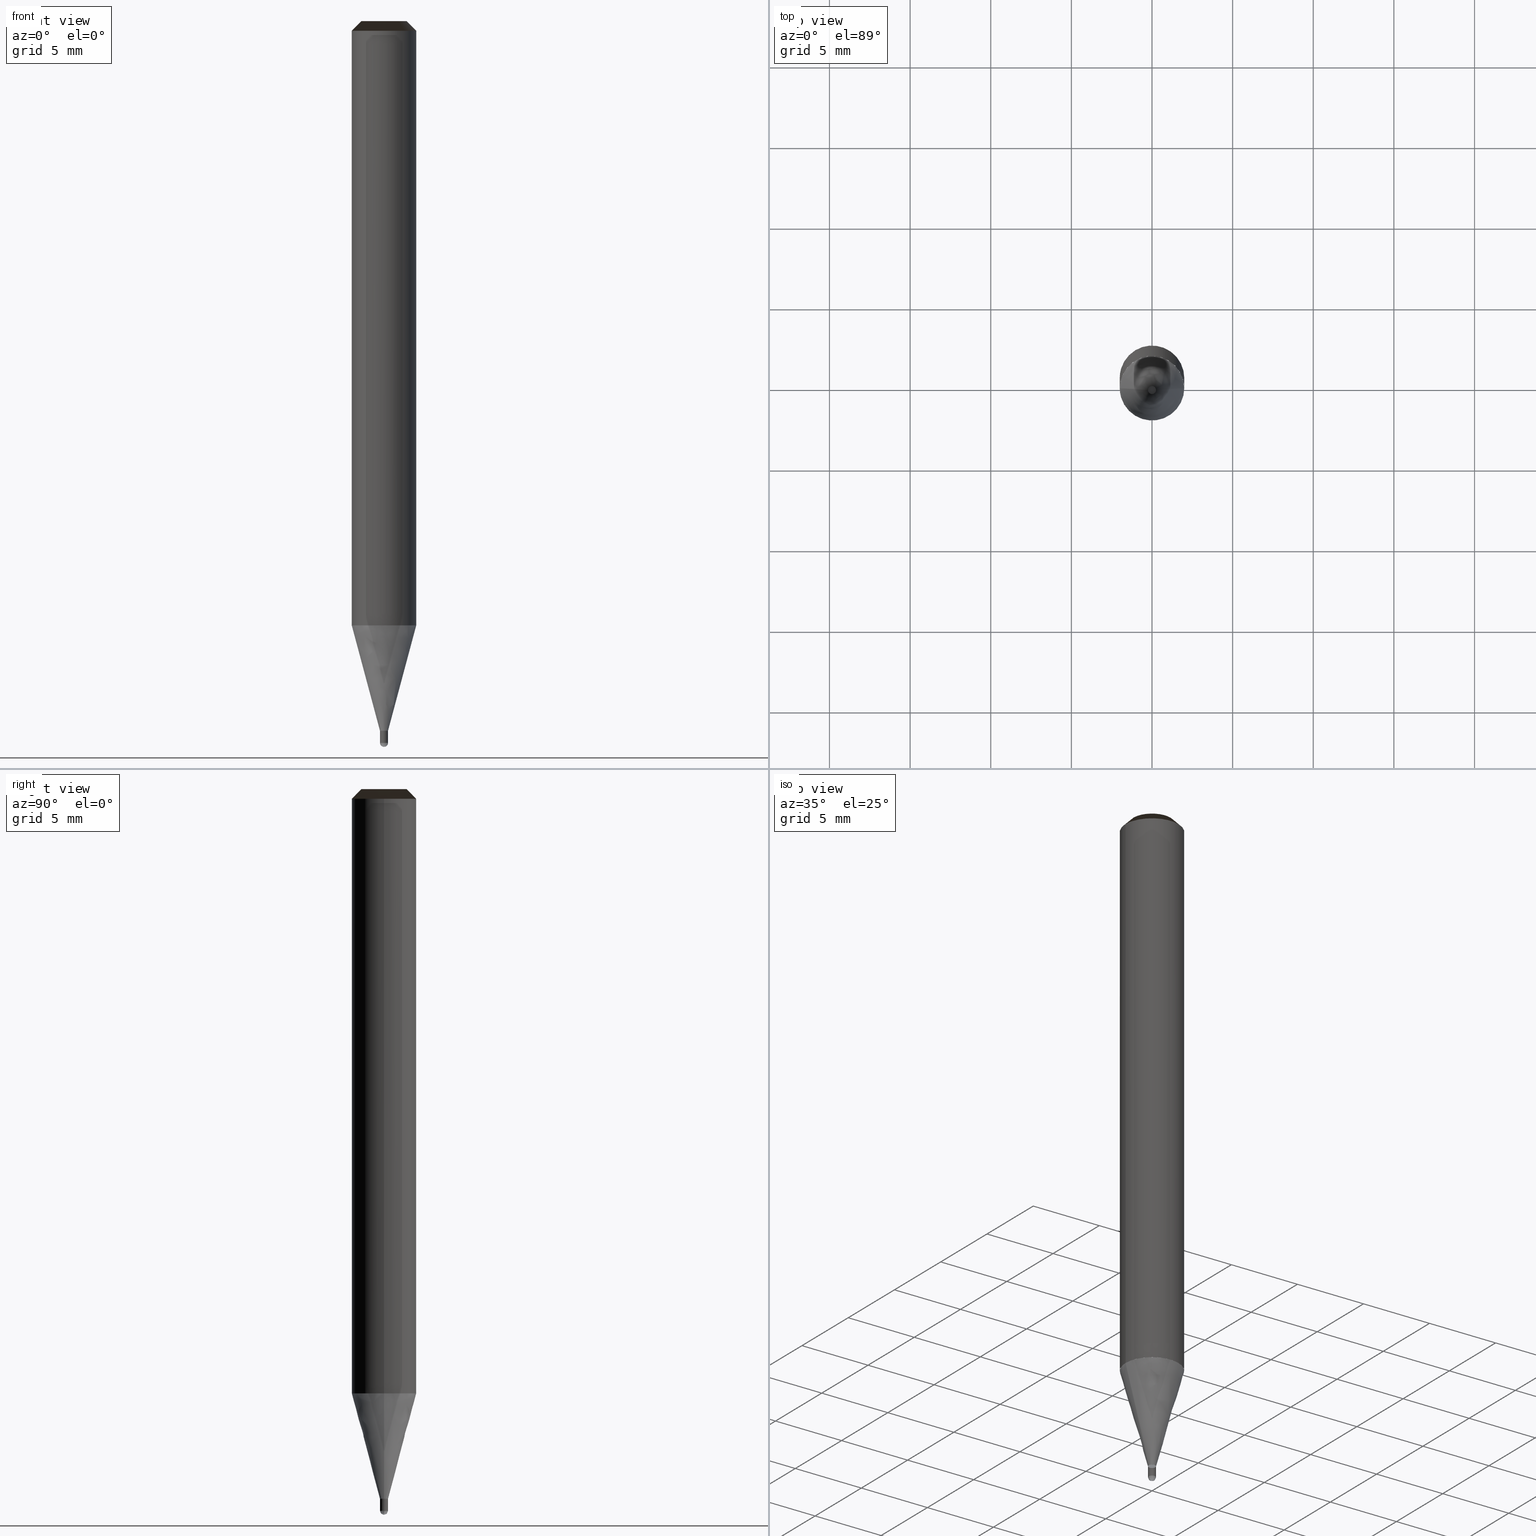
[diagram: canonical four-view strip — front | top / right | iso, engineering-drawing reading convention]
A machine part, canonical four-view strip (front | top / right | iso — engineering-drawing reading convention). The complete STEP part file that produces these views, byte-faithful:
ISO-10303-21;
HEADER;
/* Generated by ISBE GmbH (www.isbe.de) */
/* OPTION: using custom schema-name function */

FILE_DESCRIPTION(
/* description */ (''),
/* implementation_level */ '2;1');

FILE_NAME(
/*name*/ 'SHBS-2005-S04-STH',
/*time_stamp*/'2023-9-12T9:51:45',
/*author*/ ('ISBE GmbH'),
/*organization*/ ('ISBE GmbH'),
/*preprocessor_version*/ 'STEP IO v1.0',
/*originating_system*/ '',
/*authorisation*/ '');

FILE_SCHEMA (('AUTOMOTIVE_DESIGN'));
ENDSEC;

DATA;
#10=SHAPE_DEFINITION_REPRESENTATION(#11,#57);
#11=PRODUCT_DEFINITION_SHAPE('Document','',#13);
#12=PRODUCT_DEFINITION_CONTEXT('3D Mechanical Parts',#17,'design');
#13=PRODUCT_DEFINITION('A','First version',#14,#12);
#14=PRODUCT_DEFINITION_FORMATION_WITH_SPECIFIED_SOURCE('A','First version',#19,.MADE.);
#15=PRODUCT_RELATED_PRODUCT_CATEGORY('tool','tool',(#19));
#16=APPLICATION_PROTOCOL_DEFINITION('Draft International Standard', 'automotive_design',1999,#17);
#17=APPLICATION_CONTEXT('data for automotive mechanical design processes');
#18=PRODUCT_CONTEXT('3D Mechanical Parts',#17,'mechanical');
#19=PRODUCT('Document','Document','ISBE converted to STEP',(#18));
#20=(
LENGTH_UNIT()
NAMED_UNIT(*)
SI_UNIT(.MILLI.,.METRE.)
);
#21=(
NAMED_UNIT(*)
PLANE_ANGLE_UNIT()
SI_UNIT($,.RADIAN.)
);
#22=DIMENSIONAL_EXPONENTS(0.,0.,0.,0.,0.,0.,0.);
#23=PLANE_ANGLE_MEASURE_WITH_UNIT(PLANE_ANGLE_MEASURE(0.01745329252),#21);
#24=(
CONVERSION_BASED_UNIT('DEGREES',#23)
NAMED_UNIT(#22)
PLANE_ANGLE_UNIT()
);
#25=(
NAMED_UNIT(*)
SI_UNIT($,.STERADIAN.)
SOLID_ANGLE_UNIT()
);
#26=UNCERTAINTY_MEASURE_WITH_UNIT(LENGTH_MEASURE(0.001),#20, 'DISTANCE_ACCURACY_VALUE', 'Maximum model space distance between geometric entities at asserted connectivities');
#27=(
GEOMETRIC_REPRESENTATION_CONTEXT(3)
GLOBAL_UNCERTAINTY_ASSIGNED_CONTEXT((#26))
GLOBAL_UNIT_ASSIGNED_CONTEXT((#25,#24,#20))
REPRESENTATION_CONTEXT('ID1','3D')
);
#28=CARTESIAN_POINT('',(0.0,0.0,0.0));
#29=DIRECTION('',(1.0,0.0,0.0));
#30=DIRECTION('',(0.0,0.0,1.0));
#31=AXIS2_PLACEMENT_3D('',#28,#30,#29);
#32=CARTESIAN_POINT('',(0.0,0.0,0.0));
#33=DIRECTION('',(1.0,0.0,0.0));
#34=DIRECTION('',(0.0,0.0,1.0));
#35=AXIS2_PLACEMENT_3D('',#32,#34,#33);
#36=CARTESIAN_POINT('',(0.0,0.0,0.0));
#37=DIRECTION('',(1.0,0.0,0.0));
#38=DIRECTION('',(0.0,0.0,1.0));
#39=AXIS2_PLACEMENT_3D('',#36,#38,#37);
#40=CARTESIAN_POINT('',(0.0,0.0,0.0));
#41=DIRECTION('',(0.0,0.0,1.0));
#42=DIRECTION('',(1.0,0.0,0.0));
#43=AXIS2_PLACEMENT_3D('MCS',#40,#42,#41);
#44=CARTESIAN_POINT('',(0.0,0.0,37.468));
#45=DIRECTION('',(0.0,0.0,1.0));
#46=DIRECTION('',(1.0,0.0,0.0));
#47=AXIS2_PLACEMENT_3D('PCS',#44,#46,#45);
#48=CARTESIAN_POINT('',(0.0,0.0,-7.532));
#49=DIRECTION('',(0.0,0.0,1.0));
#50=DIRECTION('',(1.0,0.0,0.0));
#51=AXIS2_PLACEMENT_3D('CIP',#48,#50,#49);
#52=CARTESIAN_POINT('',(0.0,-0.25,-7.532));
#53=DIRECTION('',(0.0,0.0,1.0));
#54=DIRECTION('',(1.0,0.0,0.0));
#55=AXIS2_PLACEMENT_3D('CRP',#52,#54,#53);
#57=SHAPE_REPRESENTATION('Document',(#31,#35,#39,#43,#47,#51,#55),#27);
#58=DIRECTION('',(1.0,0.0,0.0));
#59=DIRECTION('',(0.0,0.0,1.0));
#60=CARTESIAN_POINT('',(-0.002499872672,-0.00002523136,-7.531959925233));
#61=CARTESIAN_POINT('',(-0.002421480193,-0.007638253087,-7.53187155405));
#62=CARTESIAN_POINT('',(-0.002322864485,-0.015848229195,-7.531486348188));
#63=CARTESIAN_POINT('',(-0.002197355265,-0.023904978014,-7.530844778237));
#64=CARTESIAN_POINT('',(-0.002029954615,-0.031904777296,-7.529947503456));
#65=CARTESIAN_POINT('',(-0.001806730511,-0.039859047038,-7.528795445854));
#66=CARTESIAN_POINT('',(-0.001514175515,-0.047765663457,-7.527389789248));
#67=CARTESIAN_POINT('',(-0.00113918243,-0.055618568315,-7.525731978045));
#68=CARTESIAN_POINT('',(-0.000669091871,-0.063410116009,-7.52382371576));
#69=CARTESIAN_POINT('',(-0.000091754697,-0.071131837479,-7.521666963259));
#70=CARTESIAN_POINT('',(0.000604402074,-0.078774735891,-7.519263936753));
#71=CARTESIAN_POINT('',(0.00143030911,-0.08632941571,-7.516617105512));
#72=CARTESIAN_POINT('',(0.002396189665,-0.093786145483,-7.513729189337));
#73=CARTESIAN_POINT('',(0.003511496199,-0.101134892959,-7.510603155754));
#74=CARTESIAN_POINT('',(0.004784849201,-0.108365349213,-7.507242216976));
#75=CARTESIAN_POINT('',(0.006223978645,-0.115466949648,-7.503649826593));
#76=CARTESIAN_POINT('',(0.007835668468,-0.122428895854,-7.499829676031));
#77=CARTESIAN_POINT('',(0.009625704481,-0.129240180452,-7.495785690751));
#78=CARTESIAN_POINT('',(0.011598826128,-0.135889616086,-7.491522026223));
#79=CARTESIAN_POINT('',(0.013758682494,-0.142365869173,-7.487043063649));
#80=CARTESIAN_POINT('',(0.016107792999,-0.148657498709,-7.482353405467));
#81=CARTESIAN_POINT('',(0.018647513194,-0.154753000183,-7.477457870617));
#82=CARTESIAN_POINT('',(0.021378006066,-0.160640854507,-7.472361489592));
#83=CARTESIAN_POINT('',(0.024298219265,-0.166309581747,-7.467069499269));
#84=CARTESIAN_POINT('',(0.027405868636,-0.171747799302,-7.461587337524));
#85=CARTESIAN_POINT('',(0.030697428404,-0.176944284136,-7.455920637651));
#86=CARTESIAN_POINT('',(0.034168128355,-0.181888038541,-7.450075222565));
#87=CARTESIAN_POINT('',(0.037811958278,-0.186568358869,-7.444057098827));
#88=CARTESIAN_POINT('',(0.041621679924,-0.190974906588,-7.437872450465));
#89=CARTESIAN_POINT('',(0.045588846652,-0.19509778098,-7.431527632623));
#90=CARTESIAN_POINT('',(0.049703830893,-0.19892759272,-7.425029165031));
#91=CARTESIAN_POINT('',(0.053955859477,-0.20245553759,-7.418383725303));
#92=CARTESIAN_POINT('',(0.058333056825,-0.205673469488,-7.411598142078));
#93=CARTESIAN_POINT('',(0.0628224959,-0.208573971935,-7.404679388001));
#94=CARTESIAN_POINT('',(0.067410256746,-0.211150427218,-7.39763457256));
#95=CARTESIAN_POINT('',(0.072081492384,-0.213397082369,-7.390470934779));
#96=CARTESIAN_POINT('',(0.076820501709,-0.215309111135,-7.383195835781));
#97=CARTESIAN_POINT('',(0.081610808987,-0.216882671155,-7.37581675122));
#98=CARTESIAN_POINT('',(0.086435249463,-0.218114955584,-7.368341263605));
#99=CARTESIAN_POINT('',(0.091276060506,-0.219004238456,-7.360777054506));
#100=CARTESIAN_POINT('',(0.096114977647,-0.219549913117,-7.353131896658));
#101=CARTESIAN_POINT('',(0.100933334818,-0.21975252314,-7.345413645977));
#102=CARTESIAN_POINT('',(0.105712168015,-0.219613785213,-7.337630233489));
#103=CARTESIAN_POINT('',(0.110432321577,-0.219136603556,-7.329789657175));
#104=CARTESIAN_POINT('',(0.115074556223,-0.218325075528,-7.321899973758));
#105=CARTESIAN_POINT('',(0.119619657961,-0.217184488165,-7.313969290421));
#106=CARTESIAN_POINT('',(0.124048546952,-0.215721305519,-7.306005756477));
#107=CARTESIAN_POINT('',(0.128342385434,-0.213943146731,-7.298017554995));
#108=CARTESIAN_POINT('',(0.132482683758,-0.2118587549,-7.290012894393));
#109=CARTESIAN_POINT('',(0.136451403668,-0.209477956924,-7.282));
#110=CARTESIAN_POINT('',(0.170511249566,-0.182827552003,-7.207));
#111=CARTESIAN_POINT('',(0.199468533539,-0.150706018884,-7.132));
#112=CARTESIAN_POINT('',(0.222456706693,-0.114074596853,-7.057));
#113=CARTESIAN_POINT('',(0.238787846224,-0.074029483961,-6.982));
#114=CARTESIAN_POINT('',(0.247973241558,-0.031769033211,-6.907));
#115=CARTESIAN_POINT('',(0.24973801905,0.011442108239,-6.832));
#116=CARTESIAN_POINT('',(0.244029367602,0.054310843742,-6.757));
#117=CARTESIAN_POINT('',(0.231018119035,0.095554323175,-6.682));
#118=CARTESIAN_POINT('',(0.21109363594,0.133938332324,-6.607));
#119=CARTESIAN_POINT('',(0.184852159965,0.168314226838,-6.532));
#120=CARTESIAN_POINT('',(0.002499872672,0.00002523136,-7.531959925233));
#121=CARTESIAN_POINT('',(0.002421480193,0.007638253087,-7.53187155405));
#122=CARTESIAN_POINT('',(0.002322864485,0.015848229195,-7.531486348188));
#123=CARTESIAN_POINT('',(0.002197355265,0.023904978014,-7.530844778237));
#124=CARTESIAN_POINT('',(0.002029954615,0.031904777296,-7.529947503456));
#125=CARTESIAN_POINT('',(0.001806730511,0.039859047038,-7.528795445854));
#126=CARTESIAN_POINT('',(0.001514175515,0.047765663457,-7.527389789248));
#127=CARTESIAN_POINT('',(0.00113918243,0.055618568315,-7.525731978045));
#128=CARTESIAN_POINT('',(0.000669091871,0.063410116009,-7.52382371576));
#129=CARTESIAN_POINT('',(0.000091754697,0.071131837479,-7.521666963259));
#130=CARTESIAN_POINT('',(-0.000604402074,0.078774735891,-7.519263936753));
#131=CARTESIAN_POINT('',(-0.00143030911,0.08632941571,-7.516617105512));
#132=CARTESIAN_POINT('',(-0.002396189665,0.093786145483,-7.513729189337));
#133=CARTESIAN_POINT('',(-0.003511496199,0.101134892959,-7.510603155754));
#134=CARTESIAN_POINT('',(-0.004784849201,0.108365349213,-7.507242216976));
#135=CARTESIAN_POINT('',(-0.006223978645,0.115466949648,-7.503649826593));
#136=CARTESIAN_POINT('',(-0.007835668468,0.122428895854,-7.499829676031));
#137=CARTESIAN_POINT('',(-0.009625704481,0.129240180452,-7.495785690751));
#138=CARTESIAN_POINT('',(-0.011598826128,0.135889616086,-7.491522026223));
#139=CARTESIAN_POINT('',(-0.013758682494,0.142365869173,-7.487043063649));
#140=CARTESIAN_POINT('',(-0.016107792999,0.148657498709,-7.482353405467));
#141=CARTESIAN_POINT('',(-0.018647513194,0.154753000183,-7.477457870617));
#142=CARTESIAN_POINT('',(-0.021378006066,0.160640854507,-7.472361489592));
#143=CARTESIAN_POINT('',(-0.024298219265,0.166309581747,-7.467069499269));
#144=CARTESIAN_POINT('',(-0.027405868636,0.171747799302,-7.461587337524));
#145=CARTESIAN_POINT('',(-0.030697428404,0.176944284136,-7.455920637651));
#146=CARTESIAN_POINT('',(-0.034168128355,0.181888038541,-7.450075222565));
#147=CARTESIAN_POINT('',(-0.037811958278,0.186568358869,-7.444057098827));
#148=CARTESIAN_POINT('',(-0.041621679924,0.190974906588,-7.437872450465));
#149=CARTESIAN_POINT('',(-0.045588846652,0.19509778098,-7.431527632623));
#150=CARTESIAN_POINT('',(-0.049703830893,0.19892759272,-7.425029165031));
#151=CARTESIAN_POINT('',(-0.053955859477,0.20245553759,-7.418383725303));
#152=CARTESIAN_POINT('',(-0.058333056825,0.205673469488,-7.411598142078));
#153=CARTESIAN_POINT('',(-0.0628224959,0.208573971935,-7.404679388001));
#154=CARTESIAN_POINT('',(-0.067410256746,0.211150427218,-7.39763457256));
#155=CARTESIAN_POINT('',(-0.072081492384,0.213397082369,-7.390470934779));
#156=CARTESIAN_POINT('',(-0.076820501709,0.215309111135,-7.383195835781));
#157=CARTESIAN_POINT('',(-0.081610808987,0.216882671155,-7.37581675122));
#158=CARTESIAN_POINT('',(-0.086435249463,0.218114955584,-7.368341263605));
#159=CARTESIAN_POINT('',(-0.091276060506,0.219004238456,-7.360777054506));
#160=CARTESIAN_POINT('',(-0.096114977647,0.219549913117,-7.353131896658));
#161=CARTESIAN_POINT('',(-0.100933334818,0.21975252314,-7.345413645977));
#162=CARTESIAN_POINT('',(-0.105712168015,0.219613785213,-7.337630233489));
#163=CARTESIAN_POINT('',(-0.110432321577,0.219136603556,-7.329789657175));
#164=CARTESIAN_POINT('',(-0.115074556223,0.218325075528,-7.321899973758));
#165=CARTESIAN_POINT('',(-0.119619657961,0.217184488165,-7.313969290421));
#166=CARTESIAN_POINT('',(-0.124048546952,0.215721305519,-7.306005756477));
#167=CARTESIAN_POINT('',(-0.128342385434,0.213943146731,-7.298017554995));
#168=CARTESIAN_POINT('',(-0.132482683758,0.2118587549,-7.290012894393));
#169=CARTESIAN_POINT('',(-0.136451403668,0.209477956924,-7.282));
#170=CARTESIAN_POINT('',(-0.170511249566,0.182827552003,-7.207));
#171=CARTESIAN_POINT('',(-0.199468533539,0.150706018884,-7.132));
#172=CARTESIAN_POINT('',(-0.222456706693,0.114074596853,-7.057));
#173=CARTESIAN_POINT('',(-0.238787846224,0.074029483961,-6.982));
#174=CARTESIAN_POINT('',(-0.247973241558,0.031769033211,-6.907));
#175=CARTESIAN_POINT('',(-0.24973801905,-0.011442108239,-6.832));
#176=CARTESIAN_POINT('',(-0.244029367602,-0.054310843742,-6.757));
#177=CARTESIAN_POINT('',(-0.231018119035,-0.095554323175,-6.682));
#178=CARTESIAN_POINT('',(-0.21109363594,-0.133938332324,-6.607));
#179=CARTESIAN_POINT('',(-0.184852159965,-0.168314226838,-6.532));
#180=CARTESIAN_POINT('',(0.0,0.0,-7.532));
#181=CARTESIAN_POINT('',(0.25,0.0,-7.532));
#182=CARTESIAN_POINT('',(0.25,0.25,-7.532));
#183=CARTESIAN_POINT('',(0.0,0.25,-7.532));
#184=CARTESIAN_POINT('',(-0.25,0.25,-7.532));
#185=CARTESIAN_POINT('',(-0.25,0.0,-7.532));
#186=CARTESIAN_POINT('',(0.25,0.0,-7.282));
#187=CARTESIAN_POINT('',(0.25,0.25,-7.282));
#188=CARTESIAN_POINT('',(0.0,0.25,-7.282));
#189=CARTESIAN_POINT('',(-0.25,0.25,-7.282));
#190=CARTESIAN_POINT('',(-0.25,0.0,-7.282));
#191=CARTESIAN_POINT('',(0.25,0.0,-6.532));
#192=CARTESIAN_POINT('',(0.25,0.25,-6.532));
#193=CARTESIAN_POINT('',(0.0,0.25,-6.532));
#194=CARTESIAN_POINT('',(-0.25,0.25,-6.532));
#195=CARTESIAN_POINT('',(-0.25,0.0,-6.532));
#196=CARTESIAN_POINT('',(0.0,0.0,-6.532));
#197=CARTESIAN_POINT('',(-0.25,-0.25,-7.532));
#198=CARTESIAN_POINT('',(0.0,-0.25,-7.532));
#199=CARTESIAN_POINT('',(0.25,-0.25,-7.532));
#200=CARTESIAN_POINT('',(-0.25,-0.25,-7.282));
#201=CARTESIAN_POINT('',(0.0,-0.25,-7.282));
#202=CARTESIAN_POINT('',(0.25,-0.25,-7.282));
#203=CARTESIAN_POINT('',(-0.25,-0.25,-6.532));
#204=CARTESIAN_POINT('',(0.0,-0.25,-6.532));
#205=CARTESIAN_POINT('',(0.25,-0.25,-6.532));
#206=CARTESIAN_POINT('',(0.25,0.0,-6.531088913246));
#207=CARTESIAN_POINT('',(0.25,0.25,-6.531088913246));
#208=CARTESIAN_POINT('',(0.0,0.25,-6.531088913246));
#209=CARTESIAN_POINT('',(-0.25,0.25,-6.531088913246));
#210=CARTESIAN_POINT('',(-0.25,0.0,-6.531088913246));
#211=CARTESIAN_POINT('',(2.0,0.0,0.0));
#212=CARTESIAN_POINT('',(2.0,2.0,0.0));
#213=CARTESIAN_POINT('',(0.0,2.0,0.0));
#214=CARTESIAN_POINT('',(-2.0,2.0,0.0));
#215=CARTESIAN_POINT('',(-2.0,0.0,0.0));
#216=CARTESIAN_POINT('',(2.0,0.0,36.868));
#217=CARTESIAN_POINT('',(2.0,2.0,36.868));
#218=CARTESIAN_POINT('',(0.0,2.0,36.868));
#219=CARTESIAN_POINT('',(-2.0,2.0,36.868));
#220=CARTESIAN_POINT('',(-2.0,0.0,36.868));
#221=CARTESIAN_POINT('',(1.4,0.0,37.468));
#222=CARTESIAN_POINT('',(1.4,1.4,37.468));
#223=CARTESIAN_POINT('',(0.0,1.4,37.468));
#224=CARTESIAN_POINT('',(-1.4,1.4,37.468));
#225=CARTESIAN_POINT('',(-1.4,0.0,37.468));
#226=CARTESIAN_POINT('',(0.0,0.0,37.468));
#227=CARTESIAN_POINT('',(-0.25,-0.25,-6.531088913246));
#228=CARTESIAN_POINT('',(0.0,-0.25,-6.531088913246));
#229=CARTESIAN_POINT('',(0.25,-0.25,-6.531088913246));
#230=CARTESIAN_POINT('',(-2.0,-2.0,0.0));
#231=CARTESIAN_POINT('',(0.0,-2.0,0.0));
#232=CARTESIAN_POINT('',(2.0,-2.0,0.0));
#233=CARTESIAN_POINT('',(-2.0,-2.0,36.868));
#234=CARTESIAN_POINT('',(0.0,-2.0,36.868));
#235=CARTESIAN_POINT('',(2.0,-2.0,36.868));
#236=CARTESIAN_POINT('',(-1.4,-1.4,37.468));
#237=CARTESIAN_POINT('',(0.0,-1.4,37.468));
#238=CARTESIAN_POINT('',(1.4,-1.4,37.468));
#239=(
BOUNDED_CURVE()
B_SPLINE_CURVE(1,(#60,#61,#62,#63,#64,#65,#66,#67,#68,#69,#70,#71,#72,#73,#74,#75,#76,#77,#78,#79,#80,#81,#82,#83,#84,#85,#86,#87,#88,#89,#90,#91,#92,#93,#94,#95,#96,#97,#98,#99,#100,#101,#102,#103,#104,#105,#106,#107,#108,#109,#110,#111,#112,#113,#114,#115,#116,#117,#118,#119),.UNSPECIFIED.,.F.,.F.)
B_SPLINE_CURVE_WITH_KNOTS((2,1,1,1,1,1,1,1,1,1,1,1,1,1,1,1,1,1,1,1,1,1,1,1,1,1,1,1,1,1,1,1,1,1,1,1,1,1,1,1,1,1,1,1,1,1,1,1,1,1,1,1,1,1,1,1,1,1,1,2),
(0.0,0.005937627061,0.012347570952,0.018651166926,0.024930178608,0.031200349044,0.037467054482,0.043732839412,0.049999283964,0.056267631165,0.062539042658,0.06881471741,0.075095951026,0.081384165316,0.087680920761,0.093987917791,0.100306989917,0.106640090445,0.112989273931,0.119356673233,0.12574447294,0.132154879903,0.138590091599,0.145052263062,0.151543473119,0.158065690663,0.164620741667,0.171210277584,0.17783574577,0.184498362433,0.191199088589,0.197938609382,0.204717317065,0.211535297832,0.218392322622,0.225287841927,0.23222098459,0.239190560486,0.246195066956,0.253232698811,0.260301361691,0.267398688534,0.274522058901,0.281668620884,0.288835315312,0.296018901976,0.30321598758,0.310423055137,0.317636494512,0.324852633844,0.392367370459,0.459882107075,0.527396843691,0.594911580306,0.662426316922,0.729941053538,0.797455790153,0.864970526769,0.932485263384,1.0),.UNSPECIFIED.)
CURVE()
GEOMETRIC_REPRESENTATION_ITEM()
RATIONAL_B_SPLINE_CURVE((1.0,1.0,1.0,1.0,1.0,1.0,1.0,1.0,1.0,1.0,1.0,1.0,1.0,1.0,1.0,1.0,1.0,1.0,1.0,1.0,1.0,1.0,1.0,1.0,1.0,1.0,1.0,1.0,1.0,1.0,1.0,1.0,1.0,1.0,1.0,1.0,1.0,1.0,1.0,1.0,1.0,1.0,1.0,1.0,1.0,1.0,1.0,1.0,1.0,1.0,1.0,1.0,1.0,1.0,1.0,1.0,1.0,1.0,1.0,1.0))
REPRESENTATION_ITEM('')
);
#240=(
BOUNDED_CURVE()
B_SPLINE_CURVE(1,(#120,#121,#122,#123,#124,#125,#126,#127,#128,#129,#130,#131,#132,#133,#134,#135,#136,#137,#138,#139,#140,#141,#142,#143,#144,#145,#146,#147,#148,#149,#150,#151,#152,#153,#154,#155,#156,#157,#158,#159,#160,#161,#162,#163,#164,#165,#166,#167,#168,#169,#170,#171,#172,#173,#174,#175,#176,#177,#178,#179),.UNSPECIFIED.,.F.,.F.)
B_SPLINE_CURVE_WITH_KNOTS((2,1,1,1,1,1,1,1,1,1,1,1,1,1,1,1,1,1,1,1,1,1,1,1,1,1,1,1,1,1,1,1,1,1,1,1,1,1,1,1,1,1,1,1,1,1,1,1,1,1,1,1,1,1,1,1,1,1,1,2),
(0.0,0.005937627061,0.012347570952,0.018651166926,0.024930178608,0.031200349044,0.037467054482,0.043732839412,0.049999283964,0.056267631165,0.062539042658,0.06881471741,0.075095951026,0.081384165316,0.087680920761,0.093987917791,0.100306989917,0.106640090445,0.112989273931,0.119356673233,0.12574447294,0.132154879903,0.138590091599,0.145052263062,0.151543473119,0.158065690663,0.164620741667,0.171210277584,0.17783574577,0.184498362433,0.191199088589,0.197938609382,0.204717317065,0.211535297832,0.218392322622,0.225287841927,0.23222098459,0.239190560486,0.246195066956,0.253232698811,0.260301361691,0.267398688534,0.274522058901,0.281668620884,0.288835315312,0.296018901976,0.30321598758,0.310423055137,0.317636494512,0.324852633844,0.392367370459,0.459882107075,0.527396843691,0.594911580306,0.662426316922,0.729941053538,0.797455790153,0.864970526769,0.932485263384,1.0),.UNSPECIFIED.)
CURVE()
GEOMETRIC_REPRESENTATION_ITEM()
RATIONAL_B_SPLINE_CURVE((1.0,1.0,1.0,1.0,1.0,1.0,1.0,1.0,1.0,1.0,1.0,1.0,1.0,1.0,1.0,1.0,1.0,1.0,1.0,1.0,1.0,1.0,1.0,1.0,1.0,1.0,1.0,1.0,1.0,1.0,1.0,1.0,1.0,1.0,1.0,1.0,1.0,1.0,1.0,1.0,1.0,1.0,1.0,1.0,1.0,1.0,1.0,1.0,1.0,1.0,1.0,1.0,1.0,1.0,1.0,1.0,1.0,1.0,1.0,1.0))
REPRESENTATION_ITEM('')
);
#241=SHAPE_REPRESENTATION_RELATIONSHIP('','',#57,#242);
#242=GEOMETRICALLY_BOUNDED_WIREFRAME_SHAPE_REPRESENTATION('Curves',(#243,#31),#27);
#243=GEOMETRIC_CURVE_SET('CurveSet',(#239,#240));
#244=(
BOUNDED_SURFACE()
B_SPLINE_SURFACE(2,2,(
(#180,#180,#180,#180,#180),
(#181,#182,#183,#184,#185),
(#186,#187,#188,#189,#190)
), .UNSPECIFIED.,.F.,.F.,.F.)
B_SPLINE_SURFACE_WITH_KNOTS((3,3),(3,2,3),(
0.0,1.0),(
0.0,0.5,1.0), .UNSPECIFIED.)
GEOMETRIC_REPRESENTATION_ITEM()
RATIONAL_B_SPLINE_SURFACE(((1.0,0.707106781187,1.0,0.707106781187,1.0),
(0.707106781187,0.5,0.707106781187,0.5,0.707106781187),
(1.0,0.707106781187,1.0,0.707106781187,1.0)
))
REPRESENTATION_ITEM('')
SURFACE()
);
#245=(
BOUNDED_CURVE()
B_SPLINE_CURVE(2,(#186,#187,#188,#189,#190),.UNSPECIFIED.,.F.,.F.)
B_SPLINE_CURVE_WITH_KNOTS((3,2,3),
(0.0,0.5,1.0),.UNSPECIFIED.)
CURVE()
GEOMETRIC_REPRESENTATION_ITEM()
RATIONAL_B_SPLINE_CURVE((1.0,0.707106781187,1.0,0.707106781187,1.0))
REPRESENTATION_ITEM('')
);
#246=(
BOUNDED_CURVE()
B_SPLINE_CURVE(2,(#190,#185,#180),.UNSPECIFIED.,.F.,.F.)
B_SPLINE_CURVE_WITH_KNOTS((3,3),
(0.0,1.0),.UNSPECIFIED.)
CURVE()
GEOMETRIC_REPRESENTATION_ITEM()
RATIONAL_B_SPLINE_CURVE((1.0,0.707106781187,1.0))
REPRESENTATION_ITEM('')
);
#247=(
BOUNDED_CURVE()
B_SPLINE_CURVE(2,(#180,#181,#186),.UNSPECIFIED.,.F.,.F.)
B_SPLINE_CURVE_WITH_KNOTS((3,3),
(0.0,1.0),.UNSPECIFIED.)
CURVE()
GEOMETRIC_REPRESENTATION_ITEM()
RATIONAL_B_SPLINE_CURVE((1.0,0.707106781187,1.0))
REPRESENTATION_ITEM('')
);
#248=VERTEX_POINT('',#180);
#249=VERTEX_POINT('',#186);
#250=VERTEX_POINT('',#190);
#251=EDGE_CURVE('',#249,#250,#245,.T.);
#252=EDGE_CURVE('',#250,#248,#246,.T.);
#253=EDGE_CURVE('',#248,#249,#247,.T.);
#254=ORIENTED_EDGE('',*,*,#251,.T.);
#255=ORIENTED_EDGE('',*,*,#252,.T.);
#256=ORIENTED_EDGE('',*,*,#253,.T.);
#257=EDGE_LOOP('',(#254,#255,#256));
#258=FACE_OUTER_BOUND('',#257,.T.);
#259=ADVANCED_FACE('',(#258),#244,.T.);
#260=(
BOUNDED_SURFACE()
B_SPLINE_SURFACE(1,2,(
(#186,#187,#188,#189,#190),
(#191,#192,#193,#194,#195)
), .UNSPECIFIED.,.F.,.F.,.F.)
B_SPLINE_SURFACE_WITH_KNOTS((2,2),(3,2,3),(
0.0,1.0),(
0.0,0.5,1.0), .UNSPECIFIED.)
GEOMETRIC_REPRESENTATION_ITEM()
RATIONAL_B_SPLINE_SURFACE(((1.0,0.707106781187,1.0,0.707106781187,1.0),
(1.0,0.707106781187,1.0,0.707106781187,1.0)
))
REPRESENTATION_ITEM('')
SURFACE()
);
#261=(
BOUNDED_CURVE()
B_SPLINE_CURVE(2,(#191,#192,#193,#194,#195),.UNSPECIFIED.,.F.,.F.)
B_SPLINE_CURVE_WITH_KNOTS((3,2,3),
(0.0,0.5,1.0),.UNSPECIFIED.)
CURVE()
GEOMETRIC_REPRESENTATION_ITEM()
RATIONAL_B_SPLINE_CURVE((1.0,0.707106781187,1.0,0.707106781187,1.0))
REPRESENTATION_ITEM('')
);
#262=(
BOUNDED_CURVE()
B_SPLINE_CURVE(1,(#195,#190),.UNSPECIFIED.,.F.,.F.)
B_SPLINE_CURVE_WITH_KNOTS((2,2),
(0.0,1.0),.UNSPECIFIED.)
CURVE()
GEOMETRIC_REPRESENTATION_ITEM()
RATIONAL_B_SPLINE_CURVE((1.0,1.0))
REPRESENTATION_ITEM('')
);
#263=(
BOUNDED_CURVE()
B_SPLINE_CURVE(2,(#190,#189,#188,#187,#186),.UNSPECIFIED.,.F.,.F.)
B_SPLINE_CURVE_WITH_KNOTS((3,2,3),
(0.0,0.5,1.0),.UNSPECIFIED.)
CURVE()
GEOMETRIC_REPRESENTATION_ITEM()
RATIONAL_B_SPLINE_CURVE((1.0,0.707106781187,1.0,0.707106781187,1.0))
REPRESENTATION_ITEM('')
);
#264=(
BOUNDED_CURVE()
B_SPLINE_CURVE(1,(#186,#191),.UNSPECIFIED.,.F.,.F.)
B_SPLINE_CURVE_WITH_KNOTS((2,2),
(0.0,1.0),.UNSPECIFIED.)
CURVE()
GEOMETRIC_REPRESENTATION_ITEM()
RATIONAL_B_SPLINE_CURVE((1.0,1.0))
REPRESENTATION_ITEM('')
);
#265=VERTEX_POINT('',#186);
#266=VERTEX_POINT('',#190);
#267=VERTEX_POINT('',#191);
#268=VERTEX_POINT('',#195);
#269=EDGE_CURVE('',#267,#268,#261,.T.);
#270=EDGE_CURVE('',#268,#266,#262,.T.);
#271=EDGE_CURVE('',#266,#265,#263,.T.);
#272=EDGE_CURVE('',#265,#267,#264,.T.);
#273=ORIENTED_EDGE('',*,*,#269,.T.);
#274=ORIENTED_EDGE('',*,*,#270,.T.);
#275=ORIENTED_EDGE('',*,*,#271,.T.);
#276=ORIENTED_EDGE('',*,*,#272,.T.);
#277=EDGE_LOOP('',(#273,#274,#275,#276));
#278=FACE_OUTER_BOUND('',#277,.T.);
#279=ADVANCED_FACE('',(#278),#260,.T.);
#280=(
BOUNDED_SURFACE()
B_SPLINE_SURFACE(1,2,(
(#191,#192,#193,#194,#195),
(#196,#196,#196,#196,#196)
), .UNSPECIFIED.,.F.,.F.,.F.)
B_SPLINE_SURFACE_WITH_KNOTS((2,2),(3,2,3),(
0.0,1.0),(
0.0,0.5,1.0), .UNSPECIFIED.)
GEOMETRIC_REPRESENTATION_ITEM()
RATIONAL_B_SPLINE_SURFACE(((1.0,0.707106781187,1.0,0.707106781187,1.0),
(1.0,0.707106781187,1.0,0.707106781187,1.0)
))
REPRESENTATION_ITEM('')
SURFACE()
);
#281=(
BOUNDED_CURVE()
B_SPLINE_CURVE(1,(#196,#191),.UNSPECIFIED.,.F.,.F.)
B_SPLINE_CURVE_WITH_KNOTS((2,2),
(0.0,1.0),.UNSPECIFIED.)
CURVE()
GEOMETRIC_REPRESENTATION_ITEM()
RATIONAL_B_SPLINE_CURVE((1.0,1.0))
REPRESENTATION_ITEM('')
);
#282=(
BOUNDED_CURVE()
B_SPLINE_CURVE(2,(#191,#192,#193,#194,#195),.UNSPECIFIED.,.F.,.F.)
B_SPLINE_CURVE_WITH_KNOTS((3,2,3),
(0.0,0.5,1.0),.UNSPECIFIED.)
CURVE()
GEOMETRIC_REPRESENTATION_ITEM()
RATIONAL_B_SPLINE_CURVE((1.0,0.707106781187,1.0,0.707106781187,1.0))
REPRESENTATION_ITEM('')
);
#283=(
BOUNDED_CURVE()
B_SPLINE_CURVE(1,(#195,#196),.UNSPECIFIED.,.F.,.F.)
B_SPLINE_CURVE_WITH_KNOTS((2,2),
(0.0,1.0),.UNSPECIFIED.)
CURVE()
GEOMETRIC_REPRESENTATION_ITEM()
RATIONAL_B_SPLINE_CURVE((1.0,1.0))
REPRESENTATION_ITEM('')
);
#284=VERTEX_POINT('',#191);
#285=VERTEX_POINT('',#195);
#286=VERTEX_POINT('',#196);
#287=EDGE_CURVE('',#286,#284,#281,.T.);
#288=EDGE_CURVE('',#284,#285,#282,.T.);
#289=EDGE_CURVE('',#285,#286,#283,.T.);
#290=ORIENTED_EDGE('',*,*,#287,.T.);
#291=ORIENTED_EDGE('',*,*,#288,.T.);
#292=ORIENTED_EDGE('',*,*,#289,.T.);
#293=EDGE_LOOP('',(#290,#291,#292));
#294=FACE_OUTER_BOUND('',#293,.T.);
#295=ADVANCED_FACE('',(#294),#280,.T.);
#296=(
BOUNDED_SURFACE()
B_SPLINE_SURFACE(2,2,(
(#180,#180,#180,#180,#180),
(#185,#197,#198,#199,#181),
(#190,#200,#201,#202,#186)
), .UNSPECIFIED.,.F.,.F.,.F.)
B_SPLINE_SURFACE_WITH_KNOTS((3,3),(3,2,3),(
0.0,1.0),(
0.0,0.5,1.0), .UNSPECIFIED.)
GEOMETRIC_REPRESENTATION_ITEM()
RATIONAL_B_SPLINE_SURFACE(((1.0,0.707106781187,1.0,0.707106781187,1.0),
(0.707106781187,0.5,0.707106781187,0.5,0.707106781187),
(1.0,0.707106781187,1.0,0.707106781187,1.0)
))
REPRESENTATION_ITEM('')
SURFACE()
);
#297=(
BOUNDED_CURVE()
B_SPLINE_CURVE(2,(#190,#185,#180),.UNSPECIFIED.,.F.,.F.)
B_SPLINE_CURVE_WITH_KNOTS((3,3),
(0.0,1.0),.UNSPECIFIED.)
CURVE()
GEOMETRIC_REPRESENTATION_ITEM()
RATIONAL_B_SPLINE_CURVE((1.0,0.707106781187,1.0))
REPRESENTATION_ITEM('')
);
#298=(
BOUNDED_CURVE()
B_SPLINE_CURVE(2,(#180,#181,#186),.UNSPECIFIED.,.F.,.F.)
B_SPLINE_CURVE_WITH_KNOTS((3,3),
(0.0,1.0),.UNSPECIFIED.)
CURVE()
GEOMETRIC_REPRESENTATION_ITEM()
RATIONAL_B_SPLINE_CURVE((1.0,0.707106781187,1.0))
REPRESENTATION_ITEM('')
);
#299=(
BOUNDED_CURVE()
B_SPLINE_CURVE(2,(#186,#202,#201,#200,#190),.UNSPECIFIED.,.F.,.F.)
B_SPLINE_CURVE_WITH_KNOTS((3,2,3),
(0.0,0.5,1.0),.UNSPECIFIED.)
CURVE()
GEOMETRIC_REPRESENTATION_ITEM()
RATIONAL_B_SPLINE_CURVE((1.0,0.707106781187,1.0,0.707106781187,1.0))
REPRESENTATION_ITEM('')
);
#300=VERTEX_POINT('',#180);
#301=VERTEX_POINT('',#186);
#302=VERTEX_POINT('',#190);
#303=EDGE_CURVE('',#302,#300,#297,.T.);
#304=EDGE_CURVE('',#300,#301,#298,.T.);
#305=EDGE_CURVE('',#301,#302,#299,.T.);
#306=ORIENTED_EDGE('',*,*,#303,.T.);
#307=ORIENTED_EDGE('',*,*,#304,.T.);
#308=ORIENTED_EDGE('',*,*,#305,.T.);
#309=EDGE_LOOP('',(#306,#307,#308));
#310=FACE_OUTER_BOUND('',#309,.T.);
#311=ADVANCED_FACE('',(#310),#296,.T.);
#312=(
BOUNDED_SURFACE()
B_SPLINE_SURFACE(1,2,(
(#190,#200,#201,#202,#186),
(#195,#203,#204,#205,#191)
), .UNSPECIFIED.,.F.,.F.,.F.)
B_SPLINE_SURFACE_WITH_KNOTS((2,2),(3,2,3),(
0.0,1.0),(
0.0,0.5,1.0), .UNSPECIFIED.)
GEOMETRIC_REPRESENTATION_ITEM()
RATIONAL_B_SPLINE_SURFACE(((1.0,0.707106781187,1.0,0.707106781187,1.0),
(1.0,0.707106781187,1.0,0.707106781187,1.0)
))
REPRESENTATION_ITEM('')
SURFACE()
);
#313=(
BOUNDED_CURVE()
B_SPLINE_CURVE(1,(#195,#190),.UNSPECIFIED.,.F.,.F.)
B_SPLINE_CURVE_WITH_KNOTS((2,2),
(0.0,1.0),.UNSPECIFIED.)
CURVE()
GEOMETRIC_REPRESENTATION_ITEM()
RATIONAL_B_SPLINE_CURVE((1.0,1.0))
REPRESENTATION_ITEM('')
);
#314=(
BOUNDED_CURVE()
B_SPLINE_CURVE(2,(#190,#200,#201,#202,#186),.UNSPECIFIED.,.F.,.F.)
B_SPLINE_CURVE_WITH_KNOTS((3,2,3),
(0.0,0.5,1.0),.UNSPECIFIED.)
CURVE()
GEOMETRIC_REPRESENTATION_ITEM()
RATIONAL_B_SPLINE_CURVE((1.0,0.707106781187,1.0,0.707106781187,1.0))
REPRESENTATION_ITEM('')
);
#315=(
BOUNDED_CURVE()
B_SPLINE_CURVE(1,(#186,#191),.UNSPECIFIED.,.F.,.F.)
B_SPLINE_CURVE_WITH_KNOTS((2,2),
(0.0,1.0),.UNSPECIFIED.)
CURVE()
GEOMETRIC_REPRESENTATION_ITEM()
RATIONAL_B_SPLINE_CURVE((1.0,1.0))
REPRESENTATION_ITEM('')
);
#316=(
BOUNDED_CURVE()
B_SPLINE_CURVE(2,(#191,#205,#204,#203,#195),.UNSPECIFIED.,.F.,.F.)
B_SPLINE_CURVE_WITH_KNOTS((3,2,3),
(0.0,0.5,1.0),.UNSPECIFIED.)
CURVE()
GEOMETRIC_REPRESENTATION_ITEM()
RATIONAL_B_SPLINE_CURVE((1.0,0.707106781187,1.0,0.707106781187,1.0))
REPRESENTATION_ITEM('')
);
#317=VERTEX_POINT('',#186);
#318=VERTEX_POINT('',#190);
#319=VERTEX_POINT('',#191);
#320=VERTEX_POINT('',#195);
#321=EDGE_CURVE('',#320,#318,#313,.T.);
#322=EDGE_CURVE('',#318,#317,#314,.T.);
#323=EDGE_CURVE('',#317,#319,#315,.T.);
#324=EDGE_CURVE('',#319,#320,#316,.T.);
#325=ORIENTED_EDGE('',*,*,#321,.T.);
#326=ORIENTED_EDGE('',*,*,#322,.T.);
#327=ORIENTED_EDGE('',*,*,#323,.T.);
#328=ORIENTED_EDGE('',*,*,#324,.T.);
#329=EDGE_LOOP('',(#325,#326,#327,#328));
#330=FACE_OUTER_BOUND('',#329,.T.);
#331=ADVANCED_FACE('',(#330),#312,.T.);
#332=(
BOUNDED_SURFACE()
B_SPLINE_SURFACE(1,2,(
(#195,#203,#204,#205,#191),
(#196,#196,#196,#196,#196)
), .UNSPECIFIED.,.F.,.F.,.F.)
B_SPLINE_SURFACE_WITH_KNOTS((2,2),(3,2,3),(
0.0,1.0),(
0.0,0.5,1.0), .UNSPECIFIED.)
GEOMETRIC_REPRESENTATION_ITEM()
RATIONAL_B_SPLINE_SURFACE(((1.0,0.707106781187,1.0,0.707106781187,1.0),
(1.0,0.707106781187,1.0,0.707106781187,1.0)
))
REPRESENTATION_ITEM('')
SURFACE()
);
#333=(
BOUNDED_CURVE()
B_SPLINE_CURVE(1,(#196,#191),.UNSPECIFIED.,.F.,.F.)
B_SPLINE_CURVE_WITH_KNOTS((2,2),
(0.0,1.0),.UNSPECIFIED.)
CURVE()
GEOMETRIC_REPRESENTATION_ITEM()
RATIONAL_B_SPLINE_CURVE((1.0,1.0))
REPRESENTATION_ITEM('')
);
#334=(
BOUNDED_CURVE()
B_SPLINE_CURVE(2,(#191,#205,#204,#203,#195),.UNSPECIFIED.,.F.,.F.)
B_SPLINE_CURVE_WITH_KNOTS((3,2,3),
(0.0,0.5,1.0),.UNSPECIFIED.)
CURVE()
GEOMETRIC_REPRESENTATION_ITEM()
RATIONAL_B_SPLINE_CURVE((1.0,0.707106781187,1.0,0.707106781187,1.0))
REPRESENTATION_ITEM('')
);
#335=(
BOUNDED_CURVE()
B_SPLINE_CURVE(1,(#195,#196),.UNSPECIFIED.,.F.,.F.)
B_SPLINE_CURVE_WITH_KNOTS((2,2),
(0.0,1.0),.UNSPECIFIED.)
CURVE()
GEOMETRIC_REPRESENTATION_ITEM()
RATIONAL_B_SPLINE_CURVE((1.0,1.0))
REPRESENTATION_ITEM('')
);
#336=VERTEX_POINT('',#191);
#337=VERTEX_POINT('',#195);
#338=VERTEX_POINT('',#196);
#339=EDGE_CURVE('',#338,#336,#333,.T.);
#340=EDGE_CURVE('',#336,#337,#334,.T.);
#341=EDGE_CURVE('',#337,#338,#335,.T.);
#342=ORIENTED_EDGE('',*,*,#339,.T.);
#343=ORIENTED_EDGE('',*,*,#340,.T.);
#344=ORIENTED_EDGE('',*,*,#341,.T.);
#345=EDGE_LOOP('',(#342,#343,#344));
#346=FACE_OUTER_BOUND('',#345,.T.);
#347=ADVANCED_FACE('',(#346),#332,.T.);
#348=CLOSED_SHELL('',(#259,#279,#295,#311,#331,#347));
#349=SHAPE_REPRESENTATION_RELATIONSHIP('','',#57,#350);
#350=ADVANCED_BREP_SHAPE_REPRESENTATION('Solid0',(#351,#31),#27);
#351=MANIFOLD_SOLID_BREP('brep',#348);
#352=(
BOUNDED_SURFACE()
B_SPLINE_SURFACE(1,2,(
(#196,#196,#196,#196,#196),
(#191,#192,#193,#194,#195)
), .UNSPECIFIED.,.F.,.F.,.F.)
B_SPLINE_SURFACE_WITH_KNOTS((2,2),(3,2,3),(
0.0,1.0),(
0.0,0.5,1.0), .UNSPECIFIED.)
GEOMETRIC_REPRESENTATION_ITEM()
RATIONAL_B_SPLINE_SURFACE(((1.0,0.707106781187,1.0,0.707106781187,1.0),
(1.0,0.707106781187,1.0,0.707106781187,1.0)
))
REPRESENTATION_ITEM('')
SURFACE()
);
#353=(
BOUNDED_CURVE()
B_SPLINE_CURVE(2,(#191,#192,#193,#194,#195),.UNSPECIFIED.,.F.,.F.)
B_SPLINE_CURVE_WITH_KNOTS((3,2,3),
(0.0,0.5,1.0),.UNSPECIFIED.)
CURVE()
GEOMETRIC_REPRESENTATION_ITEM()
RATIONAL_B_SPLINE_CURVE((1.0,0.707106781187,1.0,0.707106781187,1.0))
REPRESENTATION_ITEM('')
);
#354=(
BOUNDED_CURVE()
B_SPLINE_CURVE(1,(#195,#196),.UNSPECIFIED.,.F.,.F.)
B_SPLINE_CURVE_WITH_KNOTS((2,2),
(0.0,1.0),.UNSPECIFIED.)
CURVE()
GEOMETRIC_REPRESENTATION_ITEM()
RATIONAL_B_SPLINE_CURVE((1.0,1.0))
REPRESENTATION_ITEM('')
);
#355=(
BOUNDED_CURVE()
B_SPLINE_CURVE(1,(#196,#191),.UNSPECIFIED.,.F.,.F.)
B_SPLINE_CURVE_WITH_KNOTS((2,2),
(0.0,1.0),.UNSPECIFIED.)
CURVE()
GEOMETRIC_REPRESENTATION_ITEM()
RATIONAL_B_SPLINE_CURVE((1.0,1.0))
REPRESENTATION_ITEM('')
);
#356=VERTEX_POINT('',#191);
#357=VERTEX_POINT('',#195);
#358=VERTEX_POINT('',#196);
#359=EDGE_CURVE('',#356,#357,#353,.T.);
#360=EDGE_CURVE('',#357,#358,#354,.T.);
#361=EDGE_CURVE('',#358,#356,#355,.T.);
#362=ORIENTED_EDGE('',*,*,#359,.T.);
#363=ORIENTED_EDGE('',*,*,#360,.T.);
#364=ORIENTED_EDGE('',*,*,#361,.T.);
#365=EDGE_LOOP('',(#362,#363,#364));
#366=FACE_OUTER_BOUND('',#365,.T.);
#367=ADVANCED_FACE('',(#366),#352,.T.);
#368=(
BOUNDED_SURFACE()
B_SPLINE_SURFACE(1,2,(
(#191,#192,#193,#194,#195),
(#206,#207,#208,#209,#210)
), .UNSPECIFIED.,.F.,.F.,.F.)
B_SPLINE_SURFACE_WITH_KNOTS((2,2),(3,2,3),(
0.0,1.0),(
0.0,0.5,1.0), .UNSPECIFIED.)
GEOMETRIC_REPRESENTATION_ITEM()
RATIONAL_B_SPLINE_SURFACE(((1.0,0.707106781187,1.0,0.707106781187,1.0),
(1.0,0.707106781187,1.0,0.707106781187,1.0)
))
REPRESENTATION_ITEM('')
SURFACE()
);
#369=(
BOUNDED_CURVE()
B_SPLINE_CURVE(2,(#206,#207,#208,#209,#210),.UNSPECIFIED.,.F.,.F.)
B_SPLINE_CURVE_WITH_KNOTS((3,2,3),
(0.0,0.5,1.0),.UNSPECIFIED.)
CURVE()
GEOMETRIC_REPRESENTATION_ITEM()
RATIONAL_B_SPLINE_CURVE((1.0,0.707106781187,1.0,0.707106781187,1.0))
REPRESENTATION_ITEM('')
);
#370=(
BOUNDED_CURVE()
B_SPLINE_CURVE(1,(#210,#195),.UNSPECIFIED.,.F.,.F.)
B_SPLINE_CURVE_WITH_KNOTS((2,2),
(0.0,1.0),.UNSPECIFIED.)
CURVE()
GEOMETRIC_REPRESENTATION_ITEM()
RATIONAL_B_SPLINE_CURVE((1.0,1.0))
REPRESENTATION_ITEM('')
);
#371=(
BOUNDED_CURVE()
B_SPLINE_CURVE(2,(#195,#194,#193,#192,#191),.UNSPECIFIED.,.F.,.F.)
B_SPLINE_CURVE_WITH_KNOTS((3,2,3),
(0.0,0.5,1.0),.UNSPECIFIED.)
CURVE()
GEOMETRIC_REPRESENTATION_ITEM()
RATIONAL_B_SPLINE_CURVE((1.0,0.707106781187,1.0,0.707106781187,1.0))
REPRESENTATION_ITEM('')
);
#372=(
BOUNDED_CURVE()
B_SPLINE_CURVE(1,(#191,#206),.UNSPECIFIED.,.F.,.F.)
B_SPLINE_CURVE_WITH_KNOTS((2,2),
(0.0,1.0),.UNSPECIFIED.)
CURVE()
GEOMETRIC_REPRESENTATION_ITEM()
RATIONAL_B_SPLINE_CURVE((1.0,1.0))
REPRESENTATION_ITEM('')
);
#373=VERTEX_POINT('',#191);
#374=VERTEX_POINT('',#195);
#375=VERTEX_POINT('',#206);
#376=VERTEX_POINT('',#210);
#377=EDGE_CURVE('',#375,#376,#369,.T.);
#378=EDGE_CURVE('',#376,#374,#370,.T.);
#379=EDGE_CURVE('',#374,#373,#371,.T.);
#380=EDGE_CURVE('',#373,#375,#372,.T.);
#381=ORIENTED_EDGE('',*,*,#377,.T.);
#382=ORIENTED_EDGE('',*,*,#378,.T.);
#383=ORIENTED_EDGE('',*,*,#379,.T.);
#384=ORIENTED_EDGE('',*,*,#380,.T.);
#385=EDGE_LOOP('',(#381,#382,#383,#384));
#386=FACE_OUTER_BOUND('',#385,.T.);
#387=ADVANCED_FACE('',(#386),#368,.T.);
#388=(
BOUNDED_SURFACE()
B_SPLINE_SURFACE(1,2,(
(#206,#207,#208,#209,#210),
(#211,#212,#213,#214,#215)
), .UNSPECIFIED.,.F.,.F.,.F.)
B_SPLINE_SURFACE_WITH_KNOTS((2,2),(3,2,3),(
0.0,1.0),(
0.0,0.5,1.0), .UNSPECIFIED.)
GEOMETRIC_REPRESENTATION_ITEM()
RATIONAL_B_SPLINE_SURFACE(((1.0,0.707106781187,1.0,0.707106781187,1.0),
(1.0,0.707106781187,1.0,0.707106781187,1.0)
))
REPRESENTATION_ITEM('')
SURFACE()
);
#389=(
BOUNDED_CURVE()
B_SPLINE_CURVE(2,(#211,#212,#213,#214,#215),.UNSPECIFIED.,.F.,.F.)
B_SPLINE_CURVE_WITH_KNOTS((3,2,3),
(0.0,0.5,1.0),.UNSPECIFIED.)
CURVE()
GEOMETRIC_REPRESENTATION_ITEM()
RATIONAL_B_SPLINE_CURVE((1.0,0.707106781187,1.0,0.707106781187,1.0))
REPRESENTATION_ITEM('')
);
#390=(
BOUNDED_CURVE()
B_SPLINE_CURVE(1,(#215,#210),.UNSPECIFIED.,.F.,.F.)
B_SPLINE_CURVE_WITH_KNOTS((2,2),
(0.0,1.0),.UNSPECIFIED.)
CURVE()
GEOMETRIC_REPRESENTATION_ITEM()
RATIONAL_B_SPLINE_CURVE((1.0,1.0))
REPRESENTATION_ITEM('')
);
#391=(
BOUNDED_CURVE()
B_SPLINE_CURVE(2,(#210,#209,#208,#207,#206),.UNSPECIFIED.,.F.,.F.)
B_SPLINE_CURVE_WITH_KNOTS((3,2,3),
(0.0,0.5,1.0),.UNSPECIFIED.)
CURVE()
GEOMETRIC_REPRESENTATION_ITEM()
RATIONAL_B_SPLINE_CURVE((1.0,0.707106781187,1.0,0.707106781187,1.0))
REPRESENTATION_ITEM('')
);
#392=(
BOUNDED_CURVE()
B_SPLINE_CURVE(1,(#206,#211),.UNSPECIFIED.,.F.,.F.)
B_SPLINE_CURVE_WITH_KNOTS((2,2),
(0.0,1.0),.UNSPECIFIED.)
CURVE()
GEOMETRIC_REPRESENTATION_ITEM()
RATIONAL_B_SPLINE_CURVE((1.0,1.0))
REPRESENTATION_ITEM('')
);
#393=VERTEX_POINT('',#206);
#394=VERTEX_POINT('',#210);
#395=VERTEX_POINT('',#211);
#396=VERTEX_POINT('',#215);
#397=EDGE_CURVE('',#395,#396,#389,.T.);
#398=EDGE_CURVE('',#396,#394,#390,.T.);
#399=EDGE_CURVE('',#394,#393,#391,.T.);
#400=EDGE_CURVE('',#393,#395,#392,.T.);
#401=ORIENTED_EDGE('',*,*,#397,.T.);
#402=ORIENTED_EDGE('',*,*,#398,.T.);
#403=ORIENTED_EDGE('',*,*,#399,.T.);
#404=ORIENTED_EDGE('',*,*,#400,.T.);
#405=EDGE_LOOP('',(#401,#402,#403,#404));
#406=FACE_OUTER_BOUND('',#405,.T.);
#407=ADVANCED_FACE('',(#406),#388,.T.);
#408=(
BOUNDED_SURFACE()
B_SPLINE_SURFACE(1,2,(
(#211,#212,#213,#214,#215),
(#216,#217,#218,#219,#220)
), .UNSPECIFIED.,.F.,.F.,.F.)
B_SPLINE_SURFACE_WITH_KNOTS((2,2),(3,2,3),(
0.0,1.0),(
0.0,0.5,1.0), .UNSPECIFIED.)
GEOMETRIC_REPRESENTATION_ITEM()
RATIONAL_B_SPLINE_SURFACE(((1.0,0.707106781187,1.0,0.707106781187,1.0),
(1.0,0.707106781187,1.0,0.707106781187,1.0)
))
REPRESENTATION_ITEM('')
SURFACE()
);
#409=(
BOUNDED_CURVE()
B_SPLINE_CURVE(2,(#216,#217,#218,#219,#220),.UNSPECIFIED.,.F.,.F.)
B_SPLINE_CURVE_WITH_KNOTS((3,2,3),
(0.0,0.5,1.0),.UNSPECIFIED.)
CURVE()
GEOMETRIC_REPRESENTATION_ITEM()
RATIONAL_B_SPLINE_CURVE((1.0,0.707106781187,1.0,0.707106781187,1.0))
REPRESENTATION_ITEM('')
);
#410=(
BOUNDED_CURVE()
B_SPLINE_CURVE(1,(#220,#215),.UNSPECIFIED.,.F.,.F.)
B_SPLINE_CURVE_WITH_KNOTS((2,2),
(0.0,1.0),.UNSPECIFIED.)
CURVE()
GEOMETRIC_REPRESENTATION_ITEM()
RATIONAL_B_SPLINE_CURVE((1.0,1.0))
REPRESENTATION_ITEM('')
);
#411=(
BOUNDED_CURVE()
B_SPLINE_CURVE(2,(#215,#214,#213,#212,#211),.UNSPECIFIED.,.F.,.F.)
B_SPLINE_CURVE_WITH_KNOTS((3,2,3),
(0.0,0.5,1.0),.UNSPECIFIED.)
CURVE()
GEOMETRIC_REPRESENTATION_ITEM()
RATIONAL_B_SPLINE_CURVE((1.0,0.707106781187,1.0,0.707106781187,1.0))
REPRESENTATION_ITEM('')
);
#412=(
BOUNDED_CURVE()
B_SPLINE_CURVE(1,(#211,#216),.UNSPECIFIED.,.F.,.F.)
B_SPLINE_CURVE_WITH_KNOTS((2,2),
(0.0,1.0),.UNSPECIFIED.)
CURVE()
GEOMETRIC_REPRESENTATION_ITEM()
RATIONAL_B_SPLINE_CURVE((1.0,1.0))
REPRESENTATION_ITEM('')
);
#413=VERTEX_POINT('',#211);
#414=VERTEX_POINT('',#215);
#415=VERTEX_POINT('',#216);
#416=VERTEX_POINT('',#220);
#417=EDGE_CURVE('',#415,#416,#409,.T.);
#418=EDGE_CURVE('',#416,#414,#410,.T.);
#419=EDGE_CURVE('',#414,#413,#411,.T.);
#420=EDGE_CURVE('',#413,#415,#412,.T.);
#421=ORIENTED_EDGE('',*,*,#417,.T.);
#422=ORIENTED_EDGE('',*,*,#418,.T.);
#423=ORIENTED_EDGE('',*,*,#419,.T.);
#424=ORIENTED_EDGE('',*,*,#420,.T.);
#425=EDGE_LOOP('',(#421,#422,#423,#424));
#426=FACE_OUTER_BOUND('',#425,.T.);
#427=ADVANCED_FACE('',(#426),#408,.T.);
#428=(
BOUNDED_SURFACE()
B_SPLINE_SURFACE(1,2,(
(#216,#217,#218,#219,#220),
(#221,#222,#223,#224,#225)
), .UNSPECIFIED.,.F.,.F.,.F.)
B_SPLINE_SURFACE_WITH_KNOTS((2,2),(3,2,3),(
0.0,1.0),(
0.0,0.5,1.0), .UNSPECIFIED.)
GEOMETRIC_REPRESENTATION_ITEM()
RATIONAL_B_SPLINE_SURFACE(((1.0,0.707106781187,1.0,0.707106781187,1.0),
(1.0,0.707106781187,1.0,0.707106781187,1.0)
))
REPRESENTATION_ITEM('')
SURFACE()
);
#429=(
BOUNDED_CURVE()
B_SPLINE_CURVE(1,(#221,#216),.UNSPECIFIED.,.F.,.F.)
B_SPLINE_CURVE_WITH_KNOTS((2,2),
(0.0,1.0),.UNSPECIFIED.)
CURVE()
GEOMETRIC_REPRESENTATION_ITEM()
RATIONAL_B_SPLINE_CURVE((1.0,1.0))
REPRESENTATION_ITEM('')
);
#430=(
BOUNDED_CURVE()
B_SPLINE_CURVE(2,(#216,#217,#218,#219,#220),.UNSPECIFIED.,.F.,.F.)
B_SPLINE_CURVE_WITH_KNOTS((3,2,3),
(0.0,0.5,1.0),.UNSPECIFIED.)
CURVE()
GEOMETRIC_REPRESENTATION_ITEM()
RATIONAL_B_SPLINE_CURVE((1.0,0.707106781187,1.0,0.707106781187,1.0))
REPRESENTATION_ITEM('')
);
#431=(
BOUNDED_CURVE()
B_SPLINE_CURVE(1,(#220,#225),.UNSPECIFIED.,.F.,.F.)
B_SPLINE_CURVE_WITH_KNOTS((2,2),
(0.0,1.0),.UNSPECIFIED.)
CURVE()
GEOMETRIC_REPRESENTATION_ITEM()
RATIONAL_B_SPLINE_CURVE((1.0,1.0))
REPRESENTATION_ITEM('')
);
#432=(
BOUNDED_CURVE()
B_SPLINE_CURVE(2,(#225,#224,#223,#222,#221),.UNSPECIFIED.,.F.,.F.)
B_SPLINE_CURVE_WITH_KNOTS((3,2,3),
(0.0,0.5,1.0),.UNSPECIFIED.)
CURVE()
GEOMETRIC_REPRESENTATION_ITEM()
RATIONAL_B_SPLINE_CURVE((1.0,0.707106781187,1.0,0.707106781187,1.0))
REPRESENTATION_ITEM('')
);
#433=VERTEX_POINT('',#216);
#434=VERTEX_POINT('',#220);
#435=VERTEX_POINT('',#221);
#436=VERTEX_POINT('',#225);
#437=EDGE_CURVE('',#435,#433,#429,.T.);
#438=EDGE_CURVE('',#433,#434,#430,.T.);
#439=EDGE_CURVE('',#434,#436,#431,.T.);
#440=EDGE_CURVE('',#436,#435,#432,.T.);
#441=ORIENTED_EDGE('',*,*,#437,.T.);
#442=ORIENTED_EDGE('',*,*,#438,.T.);
#443=ORIENTED_EDGE('',*,*,#439,.T.);
#444=ORIENTED_EDGE('',*,*,#440,.T.);
#445=EDGE_LOOP('',(#441,#442,#443,#444));
#446=FACE_OUTER_BOUND('',#445,.T.);
#447=ADVANCED_FACE('',(#446),#428,.T.);
#448=(
BOUNDED_SURFACE()
B_SPLINE_SURFACE(1,2,(
(#221,#222,#223,#224,#225),
(#226,#226,#226,#226,#226)
), .UNSPECIFIED.,.F.,.F.,.F.)
B_SPLINE_SURFACE_WITH_KNOTS((2,2),(3,2,3),(
0.0,1.0),(
0.0,0.5,1.0), .UNSPECIFIED.)
GEOMETRIC_REPRESENTATION_ITEM()
RATIONAL_B_SPLINE_SURFACE(((1.0,0.707106781187,1.0,0.707106781187,1.0),
(1.0,0.707106781187,1.0,0.707106781187,1.0)
))
REPRESENTATION_ITEM('')
SURFACE()
);
#449=(
BOUNDED_CURVE()
B_SPLINE_CURVE(1,(#226,#221),.UNSPECIFIED.,.F.,.F.)
B_SPLINE_CURVE_WITH_KNOTS((2,2),
(0.0,1.0),.UNSPECIFIED.)
CURVE()
GEOMETRIC_REPRESENTATION_ITEM()
RATIONAL_B_SPLINE_CURVE((1.0,1.0))
REPRESENTATION_ITEM('')
);
#450=(
BOUNDED_CURVE()
B_SPLINE_CURVE(2,(#221,#222,#223,#224,#225),.UNSPECIFIED.,.F.,.F.)
B_SPLINE_CURVE_WITH_KNOTS((3,2,3),
(0.0,0.5,1.0),.UNSPECIFIED.)
CURVE()
GEOMETRIC_REPRESENTATION_ITEM()
RATIONAL_B_SPLINE_CURVE((1.0,0.707106781187,1.0,0.707106781187,1.0))
REPRESENTATION_ITEM('')
);
#451=(
BOUNDED_CURVE()
B_SPLINE_CURVE(1,(#225,#226),.UNSPECIFIED.,.F.,.F.)
B_SPLINE_CURVE_WITH_KNOTS((2,2),
(0.0,1.0),.UNSPECIFIED.)
CURVE()
GEOMETRIC_REPRESENTATION_ITEM()
RATIONAL_B_SPLINE_CURVE((1.0,1.0))
REPRESENTATION_ITEM('')
);
#452=VERTEX_POINT('',#221);
#453=VERTEX_POINT('',#225);
#454=VERTEX_POINT('',#226);
#455=EDGE_CURVE('',#454,#452,#449,.T.);
#456=EDGE_CURVE('',#452,#453,#450,.T.);
#457=EDGE_CURVE('',#453,#454,#451,.T.);
#458=ORIENTED_EDGE('',*,*,#455,.T.);
#459=ORIENTED_EDGE('',*,*,#456,.T.);
#460=ORIENTED_EDGE('',*,*,#457,.T.);
#461=EDGE_LOOP('',(#458,#459,#460));
#462=FACE_OUTER_BOUND('',#461,.T.);
#463=ADVANCED_FACE('',(#462),#448,.T.);
#464=(
BOUNDED_SURFACE()
B_SPLINE_SURFACE(1,2,(
(#196,#196,#196,#196,#196),
(#195,#203,#204,#205,#191)
), .UNSPECIFIED.,.F.,.F.,.F.)
B_SPLINE_SURFACE_WITH_KNOTS((2,2),(3,2,3),(
0.0,1.0),(
0.0,0.5,1.0), .UNSPECIFIED.)
GEOMETRIC_REPRESENTATION_ITEM()
RATIONAL_B_SPLINE_SURFACE(((1.0,0.707106781187,1.0,0.707106781187,1.0),
(1.0,0.707106781187,1.0,0.707106781187,1.0)
))
REPRESENTATION_ITEM('')
SURFACE()
);
#465=(
BOUNDED_CURVE()
B_SPLINE_CURVE(1,(#195,#196),.UNSPECIFIED.,.F.,.F.)
B_SPLINE_CURVE_WITH_KNOTS((2,2),
(0.0,1.0),.UNSPECIFIED.)
CURVE()
GEOMETRIC_REPRESENTATION_ITEM()
RATIONAL_B_SPLINE_CURVE((1.0,1.0))
REPRESENTATION_ITEM('')
);
#466=(
BOUNDED_CURVE()
B_SPLINE_CURVE(1,(#196,#191),.UNSPECIFIED.,.F.,.F.)
B_SPLINE_CURVE_WITH_KNOTS((2,2),
(0.0,1.0),.UNSPECIFIED.)
CURVE()
GEOMETRIC_REPRESENTATION_ITEM()
RATIONAL_B_SPLINE_CURVE((1.0,1.0))
REPRESENTATION_ITEM('')
);
#467=(
BOUNDED_CURVE()
B_SPLINE_CURVE(2,(#191,#205,#204,#203,#195),.UNSPECIFIED.,.F.,.F.)
B_SPLINE_CURVE_WITH_KNOTS((3,2,3),
(0.0,0.5,1.0),.UNSPECIFIED.)
CURVE()
GEOMETRIC_REPRESENTATION_ITEM()
RATIONAL_B_SPLINE_CURVE((1.0,0.707106781187,1.0,0.707106781187,1.0))
REPRESENTATION_ITEM('')
);
#468=VERTEX_POINT('',#191);
#469=VERTEX_POINT('',#195);
#470=VERTEX_POINT('',#196);
#471=EDGE_CURVE('',#469,#470,#465,.T.);
#472=EDGE_CURVE('',#470,#468,#466,.T.);
#473=EDGE_CURVE('',#468,#469,#467,.T.);
#474=ORIENTED_EDGE('',*,*,#471,.T.);
#475=ORIENTED_EDGE('',*,*,#472,.T.);
#476=ORIENTED_EDGE('',*,*,#473,.T.);
#477=EDGE_LOOP('',(#474,#475,#476));
#478=FACE_OUTER_BOUND('',#477,.T.);
#479=ADVANCED_FACE('',(#478),#464,.T.);
#480=(
BOUNDED_SURFACE()
B_SPLINE_SURFACE(1,2,(
(#195,#203,#204,#205,#191),
(#210,#227,#228,#229,#206)
), .UNSPECIFIED.,.F.,.F.,.F.)
B_SPLINE_SURFACE_WITH_KNOTS((2,2),(3,2,3),(
0.0,1.0),(
0.0,0.5,1.0), .UNSPECIFIED.)
GEOMETRIC_REPRESENTATION_ITEM()
RATIONAL_B_SPLINE_SURFACE(((1.0,0.707106781187,1.0,0.707106781187,1.0),
(1.0,0.707106781187,1.0,0.707106781187,1.0)
))
REPRESENTATION_ITEM('')
SURFACE()
);
#481=(
BOUNDED_CURVE()
B_SPLINE_CURVE(1,(#210,#195),.UNSPECIFIED.,.F.,.F.)
B_SPLINE_CURVE_WITH_KNOTS((2,2),
(0.0,1.0),.UNSPECIFIED.)
CURVE()
GEOMETRIC_REPRESENTATION_ITEM()
RATIONAL_B_SPLINE_CURVE((1.0,1.0))
REPRESENTATION_ITEM('')
);
#482=(
BOUNDED_CURVE()
B_SPLINE_CURVE(2,(#195,#203,#204,#205,#191),.UNSPECIFIED.,.F.,.F.)
B_SPLINE_CURVE_WITH_KNOTS((3,2,3),
(0.0,0.5,1.0),.UNSPECIFIED.)
CURVE()
GEOMETRIC_REPRESENTATION_ITEM()
RATIONAL_B_SPLINE_CURVE((1.0,0.707106781187,1.0,0.707106781187,1.0))
REPRESENTATION_ITEM('')
);
#483=(
BOUNDED_CURVE()
B_SPLINE_CURVE(1,(#191,#206),.UNSPECIFIED.,.F.,.F.)
B_SPLINE_CURVE_WITH_KNOTS((2,2),
(0.0,1.0),.UNSPECIFIED.)
CURVE()
GEOMETRIC_REPRESENTATION_ITEM()
RATIONAL_B_SPLINE_CURVE((1.0,1.0))
REPRESENTATION_ITEM('')
);
#484=(
BOUNDED_CURVE()
B_SPLINE_CURVE(2,(#206,#229,#228,#227,#210),.UNSPECIFIED.,.F.,.F.)
B_SPLINE_CURVE_WITH_KNOTS((3,2,3),
(0.0,0.5,1.0),.UNSPECIFIED.)
CURVE()
GEOMETRIC_REPRESENTATION_ITEM()
RATIONAL_B_SPLINE_CURVE((1.0,0.707106781187,1.0,0.707106781187,1.0))
REPRESENTATION_ITEM('')
);
#485=VERTEX_POINT('',#191);
#486=VERTEX_POINT('',#195);
#487=VERTEX_POINT('',#206);
#488=VERTEX_POINT('',#210);
#489=EDGE_CURVE('',#488,#486,#481,.T.);
#490=EDGE_CURVE('',#486,#485,#482,.T.);
#491=EDGE_CURVE('',#485,#487,#483,.T.);
#492=EDGE_CURVE('',#487,#488,#484,.T.);
#493=ORIENTED_EDGE('',*,*,#489,.T.);
#494=ORIENTED_EDGE('',*,*,#490,.T.);
#495=ORIENTED_EDGE('',*,*,#491,.T.);
#496=ORIENTED_EDGE('',*,*,#492,.T.);
#497=EDGE_LOOP('',(#493,#494,#495,#496));
#498=FACE_OUTER_BOUND('',#497,.T.);
#499=ADVANCED_FACE('',(#498),#480,.T.);
#500=(
BOUNDED_SURFACE()
B_SPLINE_SURFACE(1,2,(
(#210,#227,#228,#229,#206),
(#215,#230,#231,#232,#211)
), .UNSPECIFIED.,.F.,.F.,.F.)
B_SPLINE_SURFACE_WITH_KNOTS((2,2),(3,2,3),(
0.0,1.0),(
0.0,0.5,1.0), .UNSPECIFIED.)
GEOMETRIC_REPRESENTATION_ITEM()
RATIONAL_B_SPLINE_SURFACE(((1.0,0.707106781187,1.0,0.707106781187,1.0),
(1.0,0.707106781187,1.0,0.707106781187,1.0)
))
REPRESENTATION_ITEM('')
SURFACE()
);
#501=(
BOUNDED_CURVE()
B_SPLINE_CURVE(1,(#215,#210),.UNSPECIFIED.,.F.,.F.)
B_SPLINE_CURVE_WITH_KNOTS((2,2),
(0.0,1.0),.UNSPECIFIED.)
CURVE()
GEOMETRIC_REPRESENTATION_ITEM()
RATIONAL_B_SPLINE_CURVE((1.0,1.0))
REPRESENTATION_ITEM('')
);
#502=(
BOUNDED_CURVE()
B_SPLINE_CURVE(2,(#210,#227,#228,#229,#206),.UNSPECIFIED.,.F.,.F.)
B_SPLINE_CURVE_WITH_KNOTS((3,2,3),
(0.0,0.5,1.0),.UNSPECIFIED.)
CURVE()
GEOMETRIC_REPRESENTATION_ITEM()
RATIONAL_B_SPLINE_CURVE((1.0,0.707106781187,1.0,0.707106781187,1.0))
REPRESENTATION_ITEM('')
);
#503=(
BOUNDED_CURVE()
B_SPLINE_CURVE(1,(#206,#211),.UNSPECIFIED.,.F.,.F.)
B_SPLINE_CURVE_WITH_KNOTS((2,2),
(0.0,1.0),.UNSPECIFIED.)
CURVE()
GEOMETRIC_REPRESENTATION_ITEM()
RATIONAL_B_SPLINE_CURVE((1.0,1.0))
REPRESENTATION_ITEM('')
);
#504=(
BOUNDED_CURVE()
B_SPLINE_CURVE(2,(#211,#232,#231,#230,#215),.UNSPECIFIED.,.F.,.F.)
B_SPLINE_CURVE_WITH_KNOTS((3,2,3),
(0.0,0.5,1.0),.UNSPECIFIED.)
CURVE()
GEOMETRIC_REPRESENTATION_ITEM()
RATIONAL_B_SPLINE_CURVE((1.0,0.707106781187,1.0,0.707106781187,1.0))
REPRESENTATION_ITEM('')
);
#505=VERTEX_POINT('',#206);
#506=VERTEX_POINT('',#210);
#507=VERTEX_POINT('',#211);
#508=VERTEX_POINT('',#215);
#509=EDGE_CURVE('',#508,#506,#501,.T.);
#510=EDGE_CURVE('',#506,#505,#502,.T.);
#511=EDGE_CURVE('',#505,#507,#503,.T.);
#512=EDGE_CURVE('',#507,#508,#504,.T.);
#513=ORIENTED_EDGE('',*,*,#509,.T.);
#514=ORIENTED_EDGE('',*,*,#510,.T.);
#515=ORIENTED_EDGE('',*,*,#511,.T.);
#516=ORIENTED_EDGE('',*,*,#512,.T.);
#517=EDGE_LOOP('',(#513,#514,#515,#516));
#518=FACE_OUTER_BOUND('',#517,.T.);
#519=ADVANCED_FACE('',(#518),#500,.T.);
#520=(
BOUNDED_SURFACE()
B_SPLINE_SURFACE(1,2,(
(#215,#230,#231,#232,#211),
(#220,#233,#234,#235,#216)
), .UNSPECIFIED.,.F.,.F.,.F.)
B_SPLINE_SURFACE_WITH_KNOTS((2,2),(3,2,3),(
0.0,1.0),(
0.0,0.5,1.0), .UNSPECIFIED.)
GEOMETRIC_REPRESENTATION_ITEM()
RATIONAL_B_SPLINE_SURFACE(((1.0,0.707106781187,1.0,0.707106781187,1.0),
(1.0,0.707106781187,1.0,0.707106781187,1.0)
))
REPRESENTATION_ITEM('')
SURFACE()
);
#521=(
BOUNDED_CURVE()
B_SPLINE_CURVE(1,(#220,#215),.UNSPECIFIED.,.F.,.F.)
B_SPLINE_CURVE_WITH_KNOTS((2,2),
(0.0,1.0),.UNSPECIFIED.)
CURVE()
GEOMETRIC_REPRESENTATION_ITEM()
RATIONAL_B_SPLINE_CURVE((1.0,1.0))
REPRESENTATION_ITEM('')
);
#522=(
BOUNDED_CURVE()
B_SPLINE_CURVE(2,(#215,#230,#231,#232,#211),.UNSPECIFIED.,.F.,.F.)
B_SPLINE_CURVE_WITH_KNOTS((3,2,3),
(0.0,0.5,1.0),.UNSPECIFIED.)
CURVE()
GEOMETRIC_REPRESENTATION_ITEM()
RATIONAL_B_SPLINE_CURVE((1.0,0.707106781187,1.0,0.707106781187,1.0))
REPRESENTATION_ITEM('')
);
#523=(
BOUNDED_CURVE()
B_SPLINE_CURVE(1,(#211,#216),.UNSPECIFIED.,.F.,.F.)
B_SPLINE_CURVE_WITH_KNOTS((2,2),
(0.0,1.0),.UNSPECIFIED.)
CURVE()
GEOMETRIC_REPRESENTATION_ITEM()
RATIONAL_B_SPLINE_CURVE((1.0,1.0))
REPRESENTATION_ITEM('')
);
#524=(
BOUNDED_CURVE()
B_SPLINE_CURVE(2,(#216,#235,#234,#233,#220),.UNSPECIFIED.,.F.,.F.)
B_SPLINE_CURVE_WITH_KNOTS((3,2,3),
(0.0,0.5,1.0),.UNSPECIFIED.)
CURVE()
GEOMETRIC_REPRESENTATION_ITEM()
RATIONAL_B_SPLINE_CURVE((1.0,0.707106781187,1.0,0.707106781187,1.0))
REPRESENTATION_ITEM('')
);
#525=VERTEX_POINT('',#211);
#526=VERTEX_POINT('',#215);
#527=VERTEX_POINT('',#216);
#528=VERTEX_POINT('',#220);
#529=EDGE_CURVE('',#528,#526,#521,.T.);
#530=EDGE_CURVE('',#526,#525,#522,.T.);
#531=EDGE_CURVE('',#525,#527,#523,.T.);
#532=EDGE_CURVE('',#527,#528,#524,.T.);
#533=ORIENTED_EDGE('',*,*,#529,.T.);
#534=ORIENTED_EDGE('',*,*,#530,.T.);
#535=ORIENTED_EDGE('',*,*,#531,.T.);
#536=ORIENTED_EDGE('',*,*,#532,.T.);
#537=EDGE_LOOP('',(#533,#534,#535,#536));
#538=FACE_OUTER_BOUND('',#537,.T.);
#539=ADVANCED_FACE('',(#538),#520,.T.);
#540=(
BOUNDED_SURFACE()
B_SPLINE_SURFACE(1,2,(
(#220,#233,#234,#235,#216),
(#225,#236,#237,#238,#221)
), .UNSPECIFIED.,.F.,.F.,.F.)
B_SPLINE_SURFACE_WITH_KNOTS((2,2),(3,2,3),(
0.0,1.0),(
0.0,0.5,1.0), .UNSPECIFIED.)
GEOMETRIC_REPRESENTATION_ITEM()
RATIONAL_B_SPLINE_SURFACE(((1.0,0.707106781187,1.0,0.707106781187,1.0),
(1.0,0.707106781187,1.0,0.707106781187,1.0)
))
REPRESENTATION_ITEM('')
SURFACE()
);
#541=(
BOUNDED_CURVE()
B_SPLINE_CURVE(2,(#225,#236,#237,#238,#221),.UNSPECIFIED.,.F.,.F.)
B_SPLINE_CURVE_WITH_KNOTS((3,2,3),
(0.0,0.5,1.0),.UNSPECIFIED.)
CURVE()
GEOMETRIC_REPRESENTATION_ITEM()
RATIONAL_B_SPLINE_CURVE((1.0,0.707106781187,1.0,0.707106781187,1.0))
REPRESENTATION_ITEM('')
);
#542=(
BOUNDED_CURVE()
B_SPLINE_CURVE(1,(#221,#216),.UNSPECIFIED.,.F.,.F.)
B_SPLINE_CURVE_WITH_KNOTS((2,2),
(0.0,1.0),.UNSPECIFIED.)
CURVE()
GEOMETRIC_REPRESENTATION_ITEM()
RATIONAL_B_SPLINE_CURVE((1.0,1.0))
REPRESENTATION_ITEM('')
);
#543=(
BOUNDED_CURVE()
B_SPLINE_CURVE(2,(#216,#235,#234,#233,#220),.UNSPECIFIED.,.F.,.F.)
B_SPLINE_CURVE_WITH_KNOTS((3,2,3),
(0.0,0.5,1.0),.UNSPECIFIED.)
CURVE()
GEOMETRIC_REPRESENTATION_ITEM()
RATIONAL_B_SPLINE_CURVE((1.0,0.707106781187,1.0,0.707106781187,1.0))
REPRESENTATION_ITEM('')
);
#544=(
BOUNDED_CURVE()
B_SPLINE_CURVE(1,(#220,#225),.UNSPECIFIED.,.F.,.F.)
B_SPLINE_CURVE_WITH_KNOTS((2,2),
(0.0,1.0),.UNSPECIFIED.)
CURVE()
GEOMETRIC_REPRESENTATION_ITEM()
RATIONAL_B_SPLINE_CURVE((1.0,1.0))
REPRESENTATION_ITEM('')
);
#545=VERTEX_POINT('',#216);
#546=VERTEX_POINT('',#220);
#547=VERTEX_POINT('',#221);
#548=VERTEX_POINT('',#225);
#549=EDGE_CURVE('',#548,#547,#541,.T.);
#550=EDGE_CURVE('',#547,#545,#542,.T.);
#551=EDGE_CURVE('',#545,#546,#543,.T.);
#552=EDGE_CURVE('',#546,#548,#544,.T.);
#553=ORIENTED_EDGE('',*,*,#549,.T.);
#554=ORIENTED_EDGE('',*,*,#550,.T.);
#555=ORIENTED_EDGE('',*,*,#551,.T.);
#556=ORIENTED_EDGE('',*,*,#552,.T.);
#557=EDGE_LOOP('',(#553,#554,#555,#556));
#558=FACE_OUTER_BOUND('',#557,.T.);
#559=ADVANCED_FACE('',(#558),#540,.T.);
#560=(
BOUNDED_SURFACE()
B_SPLINE_SURFACE(1,2,(
(#225,#236,#237,#238,#221),
(#226,#226,#226,#226,#226)
), .UNSPECIFIED.,.F.,.F.,.F.)
B_SPLINE_SURFACE_WITH_KNOTS((2,2),(3,2,3),(
0.0,1.0),(
0.0,0.5,1.0), .UNSPECIFIED.)
GEOMETRIC_REPRESENTATION_ITEM()
RATIONAL_B_SPLINE_SURFACE(((1.0,0.707106781187,1.0,0.707106781187,1.0),
(1.0,0.707106781187,1.0,0.707106781187,1.0)
))
REPRESENTATION_ITEM('')
SURFACE()
);
#561=(
BOUNDED_CURVE()
B_SPLINE_CURVE(1,(#226,#221),.UNSPECIFIED.,.F.,.F.)
B_SPLINE_CURVE_WITH_KNOTS((2,2),
(0.0,1.0),.UNSPECIFIED.)
CURVE()
GEOMETRIC_REPRESENTATION_ITEM()
RATIONAL_B_SPLINE_CURVE((1.0,1.0))
REPRESENTATION_ITEM('')
);
#562=(
BOUNDED_CURVE()
B_SPLINE_CURVE(2,(#221,#238,#237,#236,#225),.UNSPECIFIED.,.F.,.F.)
B_SPLINE_CURVE_WITH_KNOTS((3,2,3),
(0.0,0.5,1.0),.UNSPECIFIED.)
CURVE()
GEOMETRIC_REPRESENTATION_ITEM()
RATIONAL_B_SPLINE_CURVE((1.0,0.707106781187,1.0,0.707106781187,1.0))
REPRESENTATION_ITEM('')
);
#563=(
BOUNDED_CURVE()
B_SPLINE_CURVE(1,(#225,#226),.UNSPECIFIED.,.F.,.F.)
B_SPLINE_CURVE_WITH_KNOTS((2,2),
(0.0,1.0),.UNSPECIFIED.)
CURVE()
GEOMETRIC_REPRESENTATION_ITEM()
RATIONAL_B_SPLINE_CURVE((1.0,1.0))
REPRESENTATION_ITEM('')
);
#564=VERTEX_POINT('',#221);
#565=VERTEX_POINT('',#225);
#566=VERTEX_POINT('',#226);
#567=EDGE_CURVE('',#566,#564,#561,.T.);
#568=EDGE_CURVE('',#564,#565,#562,.T.);
#569=EDGE_CURVE('',#565,#566,#563,.T.);
#570=ORIENTED_EDGE('',*,*,#567,.T.);
#571=ORIENTED_EDGE('',*,*,#568,.T.);
#572=ORIENTED_EDGE('',*,*,#569,.T.);
#573=EDGE_LOOP('',(#570,#571,#572));
#574=FACE_OUTER_BOUND('',#573,.T.);
#575=ADVANCED_FACE('',(#574),#560,.T.);
#576=CLOSED_SHELL('',(#367,#387,#407,#427,#447,#463,#479,#499,#519,#539,#559,#575));
#577=SHAPE_REPRESENTATION_RELATIONSHIP('','',#57,#578);
#578=ADVANCED_BREP_SHAPE_REPRESENTATION('Solid1',(#579,#31),#27);
#579=MANIFOLD_SOLID_BREP('brep',#576);
#580=PRESENTATION_LAYER_ASSIGNMENT('CUT','',(#351));
#581=PRESENTATION_LAYER_ASSIGNMENT('NOCUT','',(#579));
#582=PRESENTATION_LAYER_ASSIGNMENT('DETAILS','',(#239,#240));
#583=COLOUR_RGB('',0.8,0.8,0.8);
#584=COLOUR_RGB('',0.501960784314,0.501960784314,0.501960784314);
#585=COLOUR_RGB('',0.0,0.0,1.0);
#586=STYLED_ITEM('',(#587),#239);
#587=PRESENTATION_STYLE_ASSIGNMENT((#588));
#588=CURVE_STYLE('',#589,POSITIVE_LENGTH_MEASURE(0.02),#585);
#589=DRAUGHTING_PRE_DEFINED_CURVE_FONT('continuous');
#590=STYLED_ITEM('',(#591),#240);
#591=PRESENTATION_STYLE_ASSIGNMENT((#592));
#592=CURVE_STYLE('',#593,POSITIVE_LENGTH_MEASURE(0.02),#585);
#593=DRAUGHTING_PRE_DEFINED_CURVE_FONT('continuous');
#594=STYLED_ITEM('',(#595),#351);
#595=PRESENTATION_STYLE_ASSIGNMENT((#596));
#596=SURFACE_STYLE_USAGE(.BOTH.,#597);
#597=SURFACE_SIDE_STYLE('',(#598));
#598=SURFACE_STYLE_FILL_AREA(#599);
#599=FILL_AREA_STYLE('',(#600));
#600=FILL_AREA_STYLE_COLOUR('',#583);
#601=STYLED_ITEM('',(#602),#579);
#602=PRESENTATION_STYLE_ASSIGNMENT((#603));
#603=SURFACE_STYLE_USAGE(.BOTH.,#604);
#604=SURFACE_SIDE_STYLE('',(#605));
#605=SURFACE_STYLE_FILL_AREA(#606);
#606=FILL_AREA_STYLE('',(#607));
#607=FILL_AREA_STYLE_COLOUR('',#584);
#608=MECHANICAL_DESIGN_GEOMETRIC_PRESENTATION_REPRESENTATION('',(#586,#590,#594,#601),#27);
#609==CONSTRUCTIVE_GEOMETRY_REPRESENTATION('coordinate systems',(#43,#47,#51,#55), #27);
#610==CONSTRUCTIVE_GEOMETRY_REPRESENTATION_RELATIONSHIP('coordinate systems',$,#57,#609);

ENDSEC;
END-ISO-10303-21;